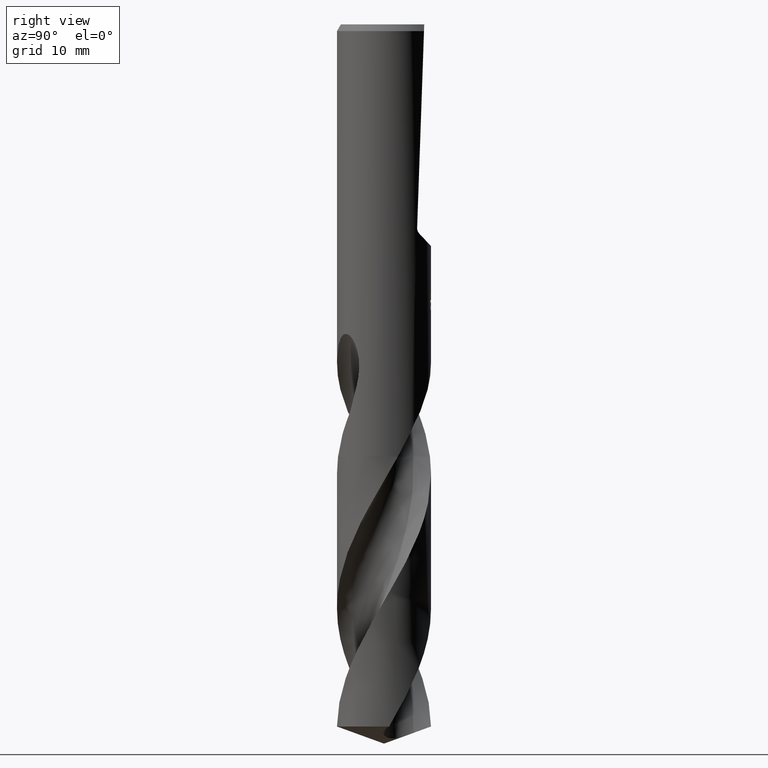
[diagram: clean part render]
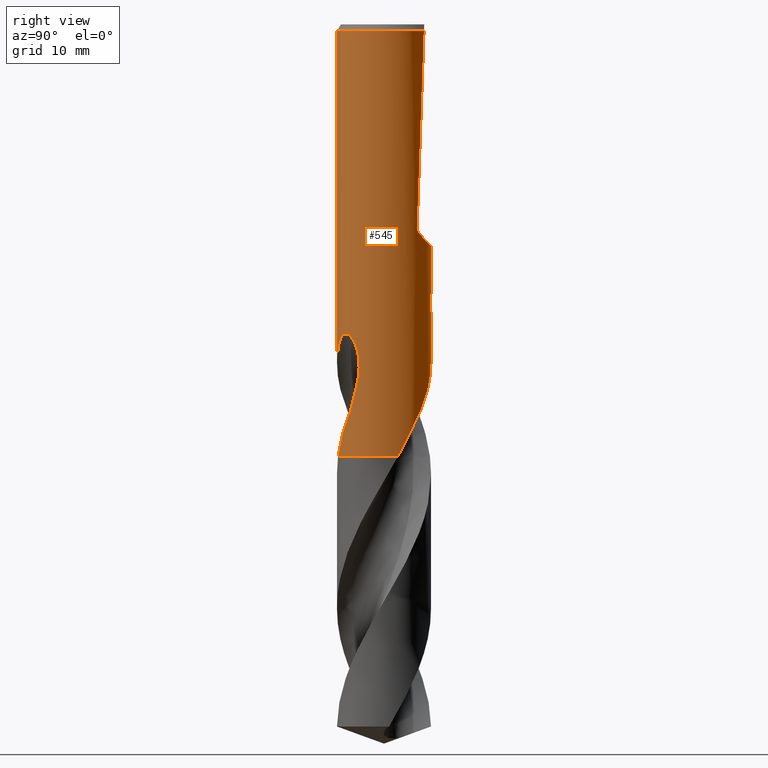
[diagram: same view with one face highlighted and labeled with its STEP entity id]
A machine part, right view. The second image highlights one B-rep face of the part: STEP entity #545.
In plain terms, the highlighted cylindrical surface (partial cylindrical patch) has radius 7 mm, axis along (-0, -0, 1).
Its self-contained STEP definition (entity closure, byte-faithful):
#287=VERTEX_POINT('',#802);
#303=VERTEX_POINT('',#821);
#327=EDGE_CURVE('',#699,#731,#846,.T.);
#339=VERTEX_POINT('',#859);
#359=EDGE_CURVE('',#403,#643,#880,.T.);
#361=VERTEX_POINT('',#882);
#387=EDGE_CURVE('',#555,#287,#911,.T.);
#391=EDGE_CURVE('',#635,#643,#915,.T.);
#399=EDGE_CURVE('',#589,#731,#924,.T.);
#403=VERTEX_POINT('',#928);
#413=VERTEX_POINT('',#938);
#421=VERTEX_POINT('',#946);
#423=VERTEX_POINT('',#948);
#433=EDGE_CURVE('',#533,#611,#958,.T.);
#441=EDGE_CURVE('',#631,#499,#966,.T.);
#465=EDGE_CURVE('',#699,#421,#994,.T.);
#475=EDGE_CURVE('',#303,#557,#1004,.T.);
#479=EDGE_CURVE('',#499,#423,#1008,.T.);
#499=VERTEX_POINT('',#1028);
#505=EDGE_CURVE('',#635,#757,#1034,.T.);
#523=EDGE_CURVE('',#287,#339,#1053,.T.);
#533=VERTEX_POINT('',#1064);
#545=ADVANCED_FACE('',(#1077),#1078,.T.);
#555=VERTEX_POINT('',#1089);
#557=VERTEX_POINT('',#1091);
#577=EDGE_CURVE('',#339,#403,#1114,.T.);
#589=VERTEX_POINT('',#1126);
#595=EDGE_CURVE('',#413,#631,#1133,.T.);
#611=VERTEX_POINT('',#1151);
#631=VERTEX_POINT('',#1174);
#635=VERTEX_POINT('',#1178);
#643=VERTEX_POINT('',#1188);
#677=EDGE_CURVE('',#533,#413,#1230,.T.);
#697=EDGE_CURVE('',#555,#557,#1253,.T.);
#699=VERTEX_POINT('',#1255);
#703=EDGE_CURVE('',#423,#361,#1259,.T.);
#719=EDGE_CURVE('',#361,#303,#1275,.T.);
#731=VERTEX_POINT('',#1288);
#737=EDGE_CURVE('',#421,#611,#1295,.T.);
#757=VERTEX_POINT('',#1316);
#765=EDGE_CURVE('',#757,#589,#1324,.T.);
#802=CARTESIAN_POINT('',(4.62951370980335,5.2504859594844,-31.1252435197041));
#821=CARTESIAN_POINT('',(0.799431726384364,6.95420081065036,-40.000000276873));
#846=CIRCLE('',#2521,7.0);
#859=CARTESIAN_POINT('',(4.97056559808667,4.92884140900449,-30.2649660915861));
#880=CIRCLE('',#2570,7.0);
#882=CARTESIAN_POINT('',(1.33721006514658,6.87108937808778,-40.5150484364821));
#911=ELLIPSE('',#2857,10.2639542994774,7.0);
#915=LINE('',#2861,#2862);
#924=B_SPLINE_CURVE_WITH_KNOTS('',3,(#2890,#2891,#2892,#2893,#2894,#2895,#2896,#2897,#2898,#2899),.UNSPECIFIED.,.F.,.F.,(4,2,2,2,4),(0.0,1.72184480533095,3.12800784972832,4.20979182845778,7.43064885291603),.UNSPECIFIED.);
#928=CARTESIAN_POINT('',(3.68619322486681,5.95079654407257,-1.0));
#938=CARTESIAN_POINT('',(0.29010312703583,6.99398600053532,-42.9998328990228));
#946=CARTESIAN_POINT('',(4.46049730765723,5.39480896495721,-57.589));
#948=CARTESIAN_POINT('',(1.33721006514658,6.87108937808778,-42.2901657003257));
#958=LINE('',#3044,#3045);
#966=LINE('',#3068,#3069);
#994=B_SPLINE_CURVE_WITH_KNOTS('',3,(#3641,#3642,#3643,#3644,#3645,#3646,#3647,#3648,#3649,#3650,#3651,#3652,#3653,#3654),.UNSPECIFIED.,.F.,.F.,(4,2,2,2,2,2,4),(0.0,1.94518278635168,3.38152268674288,4.41054122701504,5.38404336473447,7.08507707354934,8.90217719122097),.UNSPECIFIED.);
#1004=B_SPLINE_CURVE_WITH_KNOTS('',3,(#3666,#3667,#3668,#3669,#3670,#3671,#3672,#3673,#3674,#3675,#3676,#3677,#3678,#3679,#3680,#3681,#3682,#3683,#3684,#3685,#3686,#3687,#3688,#3689,#3690,#3691,#3692),.UNSPECIFIED.,.F.,.F.,(4,2,3,2,2,2,2,2,2,2,2,2,4),(-0.542036445993936,-0.271018222996967,0.0,0.271018222996968,0.542036445993935,0.813346115303562,1.08465578461319,1.35548019069071,1.62630459676823,1.89727226982465,2.16823994288107,2.4392076159375,2.71017528899392),.UNSPECIFIED.);
#1008=B_SPLINE_CURVE_WITH_KNOTS('',3,(#3697,#3698,#3699,#3700,#3701,#3702,#3703,#3704,#3705,#3706),.UNSPECIFIED.,.F.,.F.,(4,2,2,2,4),(8.00742815979372,8.31526687871434,8.62310559763496,8.93107395768936,9.23904231774376),.UNSPECIFIED.);
#1028=CARTESIAN_POINT('',(0.873560781758956,6.94527836451302,-42.7587351791531));
#1034=B_SPLINE_CURVE_WITH_KNOTS('',3,(#3766,#3767,#3768,#3769,#3770,#3771,#3772,#3773,#3774,#3775,#3776,#3777,#3778,#3779,#3780,#3781,#3782,#3783,#3784,#3785,#3786,#3787,#3788,#3789,#3790,#3791,#3792,#3793,#3794,#3795),.UNSPECIFIED.,.F.,.F.,(4,2,2,2,2,2,2,2,2,2,2,2,2,2,4),(0.0,3.42960241729036,5.30224694903621,6.99839136254973,8.96890247937527,11.3359379345839,13.3874876799547,14.3171806601562,14.9966727742058,15.6396709984164,16.4553525652528,17.6487277691431,19.3452509445065,20.4554393011994,21.6221718049992),.UNSPECIFIED.);
#1053=B_SPLINE_CURVE_WITH_KNOTS('',3,(#4156,#4157,#4158,#4159,#4160,#4161,#4162,#4163,#4164,#4165),.UNSPECIFIED.,.F.,.F.,(4,2,2,2,4),(16.7063628010312,17.2100593643904,17.5378887508026,17.8657181372147,18.1935475236268),.UNSPECIFIED.);
#1064=CARTESIAN_POINT('',(9.85631653213508E-016,7.0,-43.0310253601033));
#1077=FACE_OUTER_BOUND('',#4282,.T.);
#1078=CYLINDRICAL_SURFACE('',#4283,7.0);
#1089=CARTESIAN_POINT('',(-8.57224447675664E-016,7.0,-33.0013676345019));
#1091=CARTESIAN_POINT('',(-2.74802050569022E-015,7.0,-41.0232688117743));
#1114=ELLIPSE('',#5023,200.575958434908,7.0);
#1126=CARTESIAN_POINT('',(4.86554139901205,-5.03254477322357,-57.589));
#1133=ELLIPSE('',#5090,21.3359620135884,7.0);
#1151=CARTESIAN_POINT('',(-2.07343704380393E-012,7.00000000000001,-50.1481669256074));
#1174=CARTESIAN_POINT('',(0.873560781758957,6.94527836451302,-41.3198931596091));
#1178=CARTESIAN_POINT('',(2.07654566827288E-012,-7.0,-50.1481669256074));
#1188=CARTESIAN_POINT('',(8.57224447675664E-016,-7.0,-1.0));
#1230=B_SPLINE_CURVE_WITH_KNOTS('',3,(#6331,#6332,#6333,#6334,#6335,#6336,#6337,#6338,#6339,#6340,#6341,#6342,#6343,#6344,#6345,#6346),.UNSPECIFIED.,.F.,.F.,(4,2,2,2,2,2,2,4),(5.85148113241198,6.15947819753677,6.46754648496164,6.77561477238651,7.08368305981137,7.39175134723624,7.69959009287517,8.00742883851411),.UNSPECIFIED.);
#1253=LINE('',#6694,#6695);
#1255=CARTESIAN_POINT('',(6.69144860367264,2.05536264060808,-64.3));
#1259=LINE('',#6702,#6703);
#1275=B_SPLINE_CURVE_WITH_KNOTS('',3,(#6768,#6769,#6770,#6771,#6772,#6773,#6774,#6775,#6776,#6777),.UNSPECIFIED.,.F.,.F.,(4,2,2,2,4),(0.615936741381086,0.923905112071629,1.23187348276217,1.53971221216111,1.84755094156004),.UNSPECIFIED.);
#1288=CARTESIAN_POINT('',(1.4839435081698,-6.84089991628007,-64.3));
#1295=B_SPLINE_CURVE_WITH_KNOTS('',3,(#7311,#7312,#7313,#7314,#7315,#7316,#7317,#7318,#7319,#7320,#7321,#7322,#7323,#7324,#7325,#7326,#7327,#7328,#7329,#7330,#7331,#7332,#7333,#7334,#7335,#7336,#7337,#7338,#7339,#7340),.UNSPECIFIED.,.F.,.F.,(4,2,2,2,2,2,2,2,2,2,2,2,2,2,4),(0.0,3.42960241729033,5.30224694903611,6.99839136254967,8.96890247937512,11.3359379345835,13.3874876799543,14.3171806601556,14.9966727742052,15.6396709984158,16.4553525652521,17.6487277691424,19.345250944506,20.4554393011992,21.6221718049994),.UNSPECIFIED.);
#1316=CARTESIAN_POINT('',(5.69549514320614,-4.06956202480259,-53.7559384073879));
#1324=B_SPLINE_CURVE_WITH_KNOTS('',3,(#7446,#7447,#7448,#7449),.UNSPECIFIED.,.F.,.F.,(4,4),(0.0,4.0230393001182),.UNSPECIFIED.);
#2521=AXIS2_PLACEMENT_3D('',#7567,#7568,#7569);
#2570=AXIS2_PLACEMENT_3D('',#7596,#7597,#7598);
#2857=AXIS2_PLACEMENT_3D('',#7629,#7630,#7631);
#2861=CARTESIAN_POINT('',(8.57224447675664E-016,-7.0,-54.65));
#2862=VECTOR('',#7633,1.0);
#2890=CARTESIAN_POINT('',(4.86554139901205,-5.03254477322357,-57.589));
#2891=CARTESIAN_POINT('',(4.66885724166522,-5.22270203028218,-58.093551458908));
#2892=CARTESIAN_POINT('',(4.4578984817721,-5.40526508051008,-58.5936620584441));
#2893=CARTESIAN_POINT('',(4.02360960114657,-5.73327330716918,-59.5207677122751));
#2894=CARTESIAN_POINT('',(3.8265594954362,-5.86695924416372,-59.9121206774295));
#2895=CARTESIAN_POINT('',(3.44377150312426,-6.09739116029642,-60.6720997794567));
#2896=CARTESIAN_POINT('',(3.27431060771701,-6.18996328148055,-61.0050995113301));
#2897=CARTESIAN_POINT('',(2.59076714540731,-6.52792075255692,-62.3243983151324));
#2898=CARTESIAN_POINT('',(2.0460377153233,-6.71896916741761,-63.3103052663477));
#2899=CARTESIAN_POINT('',(1.48394350816979,-6.84089991628009,-64.3));
#3044=CARTESIAN_POINT('',(-8.57224447675664E-016,7.0,-54.65));
#3045=VECTOR('',#7654,1.0);
#3068=CARTESIAN_POINT('',(0.873560781758957,6.94527836451302,-42.0393141693811));
#3069=VECTOR('',#7655,1.0);
#3641=CARTESIAN_POINT('',(6.69144860367264,2.05536264060813,-64.3));
#3642=CARTESIAN_POINT('',(6.59591139488059,2.36639404194818,-63.7391548981552));
#3643=CARTESIAN_POINT('',(6.47787799202443,2.67341129242099,-63.176352171936));
#3644=CARTESIAN_POINT('',(6.23291009620281,3.19543830635932,-62.2031630311452));
#3645=CARTESIAN_POINT('',(6.11738702999817,3.41168238243205,-61.7957902188215));
#3646=CARTESIAN_POINT('',(5.89607994128966,3.77730901989542,-61.0461534091027));
#3647=CARTESIAN_POINT('',(5.80238719363043,3.91923206852368,-60.7376275832755));
#3648=CARTESIAN_POINT('',(5.61345363431158,4.18500508959519,-60.1244403951717));
#3649=CARTESIAN_POINT('',(5.55606207815464,4.25950079621251,-59.9336442394191));
#3650=CARTESIAN_POINT('',(5.36013898268409,4.50656511438921,-59.3449405607191));
#3651=CARTESIAN_POINT('',(5.21986348389255,4.67000849189078,-58.9926413420066));
#3652=CARTESIAN_POINT('',(4.88153314596727,5.02339373074088,-58.2789319684217));
#3653=CARTESIAN_POINT('',(4.68422765471068,5.20982584189289,-57.9284153836866));
#3654=CARTESIAN_POINT('',(4.46049730765723,5.39480896495721,-57.589));
#3666=CARTESIAN_POINT('',(0.664987495682015,6.96834210057074,-39.8134609607519));
#3667=CARTESIAN_POINT('',(0.728704683046946,6.96226158209931,-39.8772132619402));
#3668=CARTESIAN_POINT('',(0.783980930146228,6.9560576278509,-39.9579629630826));
#3669=CARTESIAN_POINT('',(0.857331586478981,6.94739853321816,-40.1350040779371));
#3670=CARTESIAN_POINT('',(0.875400981188567,6.94504666090402,-40.2313026049211));
#3671=CARTESIAN_POINT('',(0.875400981188567,6.94504666090402,-40.3216420125868));
#3672=CARTESIAN_POINT('',(0.875400981188567,6.94504666090402,-40.4119814202524));
#3673=CARTESIAN_POINT('',(0.857331586478977,6.94739853321816,-40.5082799472365));
#3674=CARTESIAN_POINT('',(0.783980930146221,6.9560576278509,-40.685321062091));
#3675=CARTESIAN_POINT('',(0.728704683046946,6.96226158209931,-40.7660707632334));
#3676=CARTESIAN_POINT('',(0.601201788425301,6.97442915788175,-40.8936439232623));
#3677=CARTESIAN_POINT('',(0.520416779900602,6.98119186147897,-40.9489826210903));
#3678=CARTESIAN_POINT('',(0.343290106212511,6.99214025419339,-41.0224214149619));
#3679=CARTESIAN_POINT('',(0.246940334999491,6.99622750070997,-41.0405166027747));
#3680=CARTESIAN_POINT('',(0.06627416096803,7.00026837167467,-41.0405166027747));
#3681=CARTESIAN_POINT('',(-0.0300009021098098,7.00049584323788,-41.0224792632517));
#3682=CARTESIAN_POINT('',(-0.207086828462645,6.99749649166544,-40.9491375975081));
#3683=CARTESIAN_POINT('',(-0.287900132119289,6.99436879728022,-40.8938351432694));
#3684=CARTESIAN_POINT('',(-0.415543530410312,6.98794742768012,-40.7662368077791));
#3685=CARTESIAN_POINT('',(-0.470882886829905,6.98424107836303,-40.6854131216791));
#3686=CARTESIAN_POINT('',(-0.544286323056282,6.97890439374672,-40.5082789756897));
#3687=CARTESIAN_POINT('',(-0.562348199187247,6.97737518719403,-40.4119645702723));
#3688=CARTESIAN_POINT('',(-0.562348199187247,6.97737518719403,-40.2313194549013));
#3689=CARTESIAN_POINT('',(-0.544286323056282,6.97890439374672,-40.1350050494839));
#3690=CARTESIAN_POINT('',(-0.470882886829905,6.98424107836303,-39.9578709034945));
#3691=CARTESIAN_POINT('',(-0.415543530410313,6.98794742768012,-39.8770472173944));
#3692=CARTESIAN_POINT('',(-0.351704954786946,6.99115896148688,-39.8132311791295));
#3697=CARTESIAN_POINT('',(0.595821832861735,6.97459650040669,-42.906915229706));
#3698=CARTESIAN_POINT('',(0.696080782017313,6.96603163640014,-42.8653146604208));
#3699=CARTESIAN_POINT('',(0.792116837306029,6.95561315461849,-42.8135662553911));
#3700=CARTESIAN_POINT('',(0.969618432803252,6.93309768685463,-42.6941279407995));
#3701=CARTESIAN_POINT('',(1.05108130466953,6.92102322032351,-42.626429821765));
#3702=CARTESIAN_POINT('',(1.1952919969079,6.89758043528895,-42.4822456158257));
#3703=CARTESIAN_POINT('',(1.26302025262196,6.88538170061673,-42.4007689419929));
#3704=CARTESIAN_POINT('',(1.38250505299397,6.86238887709316,-42.2232465506102));
#3705=CARTESIAN_POINT('',(1.43427020866861,6.8516188874023,-42.1272035084601));
#3706=CARTESIAN_POINT('',(1.47588608833803,6.842642782891,-42.0269345007415));
#3766=CARTESIAN_POINT('',(-4.46049730765722,-5.39480896495721,-57.589));
#3767=CARTESIAN_POINT('',(-3.99875241302369,-5.77658557145354,-56.6153746319502));
#3768=CARTESIAN_POINT('',(-3.46785065342962,-6.11595840580533,-55.707641291));
#3769=CARTESIAN_POINT('',(-2.54211638207962,-6.53193112555013,-54.1912110042948));
#3770=CARTESIAN_POINT('',(-2.20899351363555,-6.65159082860243,-53.6576795807597));
#3771=CARTESIAN_POINT('',(-1.56410978287001,-6.83042634064535,-52.6249013659759));
#3772=CARTESIAN_POINT('',(-1.25522828292044,-6.89360849612103,-52.1304684404969));
#3773=CARTESIAN_POINT('',(-0.586630013473711,-6.9847958620532,-51.0648345366995));
#3774=CARTESIAN_POINT('',(-0.221328414189053,-7.00620409093186,-50.4852922875691));
#3775=CARTESIAN_POINT('',(0.589913189621369,-6.98913969058714,-49.2454598950402));
#3776=CARTESIAN_POINT('',(1.07089761039797,-6.93636044042054,-48.5399816447973));
#3777=CARTESIAN_POINT('',(1.99841378101102,-6.72321293724981,-47.3766968523732));
#3778=CARTESIAN_POINT('',(2.51157116919113,-6.56082158087736,-46.8090596501611));
#3779=CARTESIAN_POINT('',(3.28823006560048,-6.18545919917171,-46.2775242368696));
#3780=CARTESIAN_POINT('',(3.5453094976296,-6.0437511576685,-46.1461604794445));
#3781=CARTESIAN_POINT('',(3.99577172663387,-5.75197084700401,-46.045249693686));
#3782=CARTESIAN_POINT('',(4.18053156521485,-5.61909192001386,-46.0433655269851));
#3783=CARTESIAN_POINT('',(4.52465673011254,-5.34538909644157,-46.1316838255335));
#3784=CARTESIAN_POINT('',(4.67515989991146,-5.21319611052673,-46.2144899892245));
#3785=CARTESIAN_POINT('',(4.98143217538999,-4.92350553321156,-46.4735808757864));
#3786=CARTESIAN_POINT('',(5.12312758693302,-4.77338062435196,-46.6648728460269));
#3787=CARTESIAN_POINT('',(5.41336559797622,-4.44557193904353,-47.1886896164334));
#3788=CARTESIAN_POINT('',(5.55209358585008,-4.26705669110065,-47.5772068430886));
#3789=CARTESIAN_POINT('',(5.81296641473949,-3.9086004098361,-48.6642348756742));
#3790=CARTESIAN_POINT('',(5.90727795600317,-3.755915361236,-49.4384017162248));
#3791=CARTESIAN_POINT('',(5.95395815136333,-3.68124917922929,-50.8711925135309));
#3792=CARTESIAN_POINT('',(5.94298232310087,-3.69944810068394,-51.4417996543475));
#3793=CARTESIAN_POINT('',(5.86545866885975,-3.82123898119621,-52.5998471235868));
#3794=CARTESIAN_POINT('',(5.79623923784892,-3.92856712209619,-53.1829287520956));
#3795=CARTESIAN_POINT('',(5.69549514320614,-4.06956202480258,-53.7559384073879));
#4156=CARTESIAN_POINT('',(4.47951498692558,5.37902830276148,-31.2443293592015));
#4157=CARTESIAN_POINT('',(4.60286230981,5.27630783208741,-31.1622522444136));
#4158=CARTESIAN_POINT('',(4.71123594115441,5.17848040625279,-31.0550454598824));
#4159=CARTESIAN_POINT('',(4.84524668311787,5.05260711780598,-30.8476251319948));
#4160=CARTESIAN_POINT('',(4.89249071380032,5.00654582393862,-30.7480917476589));
#4161=CARTESIAN_POINT('',(4.9555267775292,4.94416025605754,-30.5323839474923));
#4162=CARTESIAN_POINT('',(4.97129036280753,4.9281104014274,-30.4161219497665));
#4163=CARTESIAN_POINT('',(4.97129036280753,4.9281104014274,-30.1975690254917));
#4164=CARTESIAN_POINT('',(4.9555267775292,4.94416025605754,-30.0813070277659));
#4165=CARTESIAN_POINT('',(4.92400874566459,4.97535303999813,-29.9734531276827));
#4282=EDGE_LOOP('',(#7725,#7726,#7727,#7728,#7729,#7730,#7731,#7732,#7733,#7734,#7735,#7736,#7737,#7738,#7739,#7740,#7741,#7742,#7743,#7744));
#4283=AXIS2_PLACEMENT_3D('',#7745,#7746,#7747);
#5023=AXIS2_PLACEMENT_3D('',#7781,#7782,#7783);
#5090=AXIS2_PLACEMENT_3D('',#7801,#7802,#7803);
#6331=CARTESIAN_POINT('',(-1.37956950013868,6.862709959942,-42.3118860272267));
#6332=CARTESIAN_POINT('',(-1.31985944512012,6.87471311484171,-42.4006164760917));
#6333=CARTESIAN_POINT('',(-1.2521751980669,6.88748156909145,-42.4820605072323));
#6334=CARTESIAN_POINT('',(-1.10803116428717,6.91213530701744,-42.6262319850711));
#6335=CARTESIAN_POINT('',(-1.02657943157941,6.92489379632338,-42.6939460667801));
#6336=CARTESIAN_POINT('',(-0.849091702963374,6.94888931409906,-42.8134214863536));
#6337=CARTESIAN_POINT('',(-0.753058262458167,6.96010382408442,-42.8651911418259));
#6338=CARTESIAN_POINT('',(-0.552521113580874,6.97888690311178,-42.9484382818491));
#6339=CARTESIAN_POINT('',(-0.447850922696022,6.98645535289821,-42.9799817262365));
#6340=CARTESIAN_POINT('',(-0.237116900888673,6.99677814585499,-43.0214038898241));
#6341=CARTESIAN_POINT('',(-0.131050755579278,6.99952647100642,-43.0312723335086));
#6342=CARTESIAN_POINT('',(0.0742499035867442,7.00035830241466,-43.0312723335086));
#6343=CARTESIAN_POINT('',(0.180258797232803,6.99847263330913,-43.0214183295518));
#6344=CARTESIAN_POINT('',(0.390914314103444,6.98987113130027,-42.9800352841335));
#6345=CARTESIAN_POINT('',(0.495563147536711,6.98316134581655,-42.9485162373715));
#6346=CARTESIAN_POINT('',(0.595822105081569,6.97459647715165,-42.9069156645199));
#6694=CARTESIAN_POINT('',(-8.57224447675664E-016,7.0,-54.65));
#6695=VECTOR('',#7995,1.0);
#6702=CARTESIAN_POINT('',(1.33721006514658,6.87108937808778,-41.4026070684039));
#6703=VECTOR('',#7996,1.0);
#6768=CARTESIAN_POINT('',(1.47588609639398,6.84264278115341,-40.7782796501355));
#6769=CARTESIAN_POINT('',(1.43427021528289,6.85161888602694,-40.6780106389627));
#6770=CARTESIAN_POINT('',(1.38250505781555,6.86238887614053,-40.5819675935055));
#6771=CARTESIAN_POINT('',(1.26302025330318,6.88538170051044,-40.4044451960098));
#6772=CARTESIAN_POINT('',(1.19529199524107,6.8975804356046,-40.3229685193712));
#6773=CARTESIAN_POINT('',(1.05108129803076,6.92102322135803,-40.1787843085017));
#6774=CARTESIAN_POINT('',(0.969618423375198,6.93309768821244,-40.1110861871653));
#6775=CARTESIAN_POINT('',(0.792116821800197,6.95561315642346,-39.9916478685111));
#6776=CARTESIAN_POINT('',(0.696080763223002,6.96603163832751,-39.9398994617205));
#6777=CARTESIAN_POINT('',(0.595821810636764,6.97459650230531,-39.8982988910209));
#7311=CARTESIAN_POINT('',(4.46049730765722,5.39480896495721,-57.589));
#7312=CARTESIAN_POINT('',(3.99875241302369,5.77658557145354,-56.6153746319501));
#7313=CARTESIAN_POINT('',(3.46785065342962,6.11595840580533,-55.707641291));
#7314=CARTESIAN_POINT('',(2.54211638207963,6.53193112555013,-54.1912110042948));
#7315=CARTESIAN_POINT('',(2.20899351363557,6.65159082860243,-53.6576795807597));
#7316=CARTESIAN_POINT('',(1.56410978286997,6.83042634064536,-52.6249013659758));
#7317=CARTESIAN_POINT('',(1.25522828292037,6.89360849612104,-52.1304684404968));
#7318=CARTESIAN_POINT('',(0.586630013473824,6.98479586205318,-51.0648345366996));
#7319=CARTESIAN_POINT('',(0.221328414189102,7.00620409093187,-50.4852922875691));
#7320=CARTESIAN_POINT('',(-0.589913189621421,6.98913969058714,-49.2454598950401));
#7321=CARTESIAN_POINT('',(-1.07089761039799,6.93636044042054,-48.5399816447972));
#7322=CARTESIAN_POINT('',(-1.99841378101106,6.7232129372498,-47.3766968523731));
#7323=CARTESIAN_POINT('',(-2.51157116919114,6.56082158087735,-46.8090596501611));
#7324=CARTESIAN_POINT('',(-3.28823006560042,6.18545919917174,-46.2775242368697));
#7325=CARTESIAN_POINT('',(-3.54530949762958,6.04375115766852,-46.1461604794444));
#7326=CARTESIAN_POINT('',(-3.99577172663393,5.75197084700398,-46.0452496936859));
#7327=CARTESIAN_POINT('',(-4.18053156521488,5.61909192001384,-46.043365526985));
#7328=CARTESIAN_POINT('',(-4.52465673011253,5.34538909644158,-46.1316838255335));
#7329=CARTESIAN_POINT('',(-4.67515989991144,5.21319611052676,-46.2144899892245));
#7330=CARTESIAN_POINT('',(-4.98143217539,4.92350553321156,-46.4735808757864));
#7331=CARTESIAN_POINT('',(-5.12312758693303,4.77338062435195,-46.6648728460269));
#7332=CARTESIAN_POINT('',(-5.41336559797623,4.44557193904352,-47.1886896164334));
#7333=CARTESIAN_POINT('',(-5.55209358585008,4.26705669110064,-47.5772068430886));
#7334=CARTESIAN_POINT('',(-5.81296641473951,3.90860040983607,-48.6642348756743));
#7335=CARTESIAN_POINT('',(-5.90727795600318,3.755915361236,-49.438401716225));
#7336=CARTESIAN_POINT('',(-5.95395815136333,3.68124917922929,-50.8711925135309));
#7337=CARTESIAN_POINT('',(-5.94298232310087,3.69944810068394,-51.4417996543475));
#7338=CARTESIAN_POINT('',(-5.86545866885975,3.82123898119621,-52.5998471235868));
#7339=CARTESIAN_POINT('',(-5.79623923784893,3.92856712209618,-53.1829287520955));
#7340=CARTESIAN_POINT('',(-5.69549514320614,4.06956202480258,-53.7559384073878));
#7446=CARTESIAN_POINT('',(5.69549514325876,-4.06956202472895,-53.7559384074168));
#7447=CARTESIAN_POINT('',(5.46982091302963,-4.38540104485403,-55.0395399770848));
#7448=CARTESIAN_POINT('',(5.19782314581515,-4.71128968895515,-56.330780206636));
#7449=CARTESIAN_POINT('',(4.86554139901205,-5.03254477322357,-57.589));
#7567=CARTESIAN_POINT('',(0.0,0.0,-64.3));
#7568=DIRECTION('',(0.0,0.0,-1.0));
#7569=DIRECTION('',(0.0,1.0,0.0));
#7596=CARTESIAN_POINT('',(0.0,0.0,-1.0));
#7597=DIRECTION('',(0.0,0.0,-1.0));
#7598=DIRECTION('',(0.0,1.0,0.0));
#7629=CARTESIAN_POINT('',(0.0,0.0,-25.4947866643291));
#7630=DIRECTION('',(0.0,-0.73135370161917,-0.681998360062499));
#7631=DIRECTION('',(0.0,0.681998360062499,-0.73135370161917));
#7633=DIRECTION('',(-0.0,-0.0,1.0));
#7654=DIRECTION('',(0.0,0.0,-1.0));
#7655=DIRECTION('',(0.0,0.0,-1.0));
#7725=ORIENTED_EDGE('',*,*,#697,.F.);
#7726=ORIENTED_EDGE('',*,*,#387,.T.);
#7727=ORIENTED_EDGE('',*,*,#523,.T.);
#7728=ORIENTED_EDGE('',*,*,#577,.T.);
#7729=ORIENTED_EDGE('',*,*,#359,.T.);
#7730=ORIENTED_EDGE('',*,*,#391,.F.);
#7731=ORIENTED_EDGE('',*,*,#505,.T.);
#7732=ORIENTED_EDGE('',*,*,#765,.T.);
#7733=ORIENTED_EDGE('',*,*,#399,.T.);
#7734=ORIENTED_EDGE('',*,*,#327,.F.);
#7735=ORIENTED_EDGE('',*,*,#465,.T.);
#7736=ORIENTED_EDGE('',*,*,#737,.T.);
#7737=ORIENTED_EDGE('',*,*,#433,.F.);
#7738=ORIENTED_EDGE('',*,*,#677,.T.);
#7739=ORIENTED_EDGE('',*,*,#595,.T.);
#7740=ORIENTED_EDGE('',*,*,#441,.T.);
#7741=ORIENTED_EDGE('',*,*,#479,.T.);
#7742=ORIENTED_EDGE('',*,*,#703,.T.);
#7743=ORIENTED_EDGE('',*,*,#719,.T.);
#7744=ORIENTED_EDGE('',*,*,#475,.T.);
#7745=CARTESIAN_POINT('',(0.0,0.0,-54.65));
#7746=DIRECTION('',(-0.0,-0.0,1.0));
#7747=DIRECTION('',(0.0,1.0,0.0));
#7781=CARTESIAN_POINT('',(0.0,0.0,-171.408517071162));
#7782=DIRECTION('',(0.0,-0.999390827019096,0.0348994967025007));
#7783=DIRECTION('',(0.0,0.0348994967025007,0.999390827019096));
#7801=CARTESIAN_POINT('',(0.0,0.0,-43.8351219173269));
#7802=DIRECTION('',(0.944648353914092,0.0,-0.328084573619969));
#7803=DIRECTION('',(0.328084573619969,-0.0,0.944648353914092));
#7995=DIRECTION('',(0.0,0.0,-1.0));
#7996=DIRECTION('',(-0.0,-0.0,1.0));